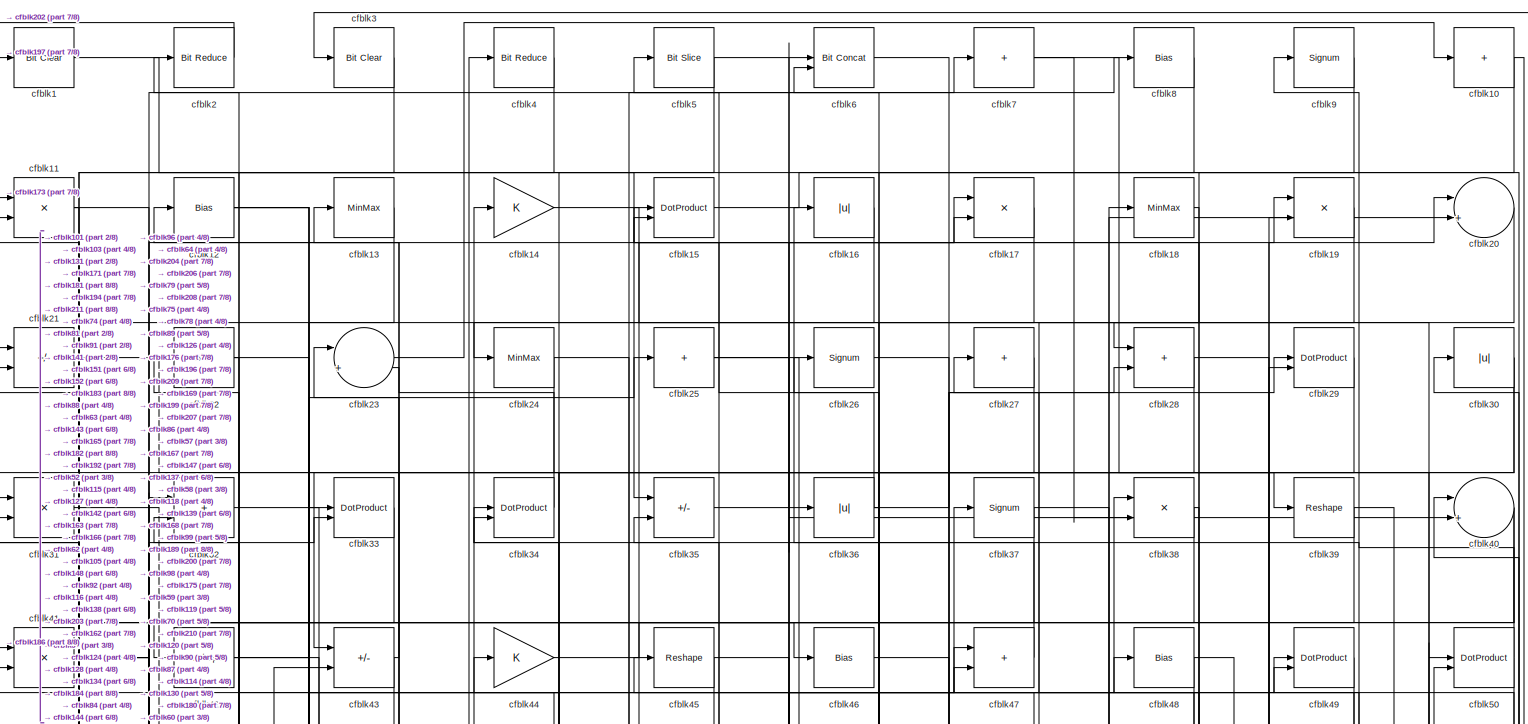
[diagram: root canvas - part 1/8, full width, top band]
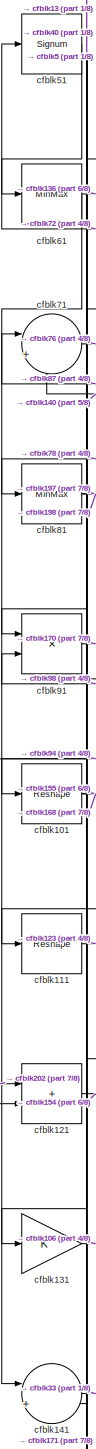
[diagram: root canvas - part 2/8, middle left region]
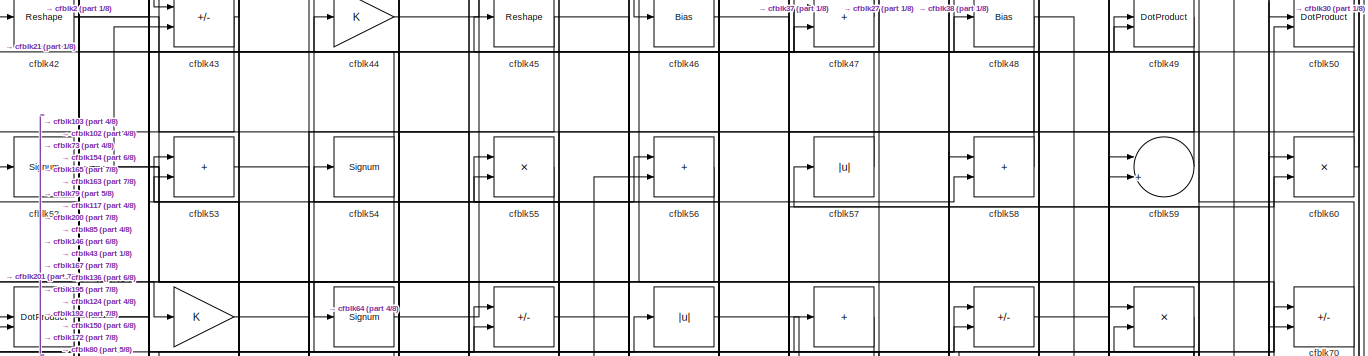
[diagram: root canvas - part 3/8, full width, top band]
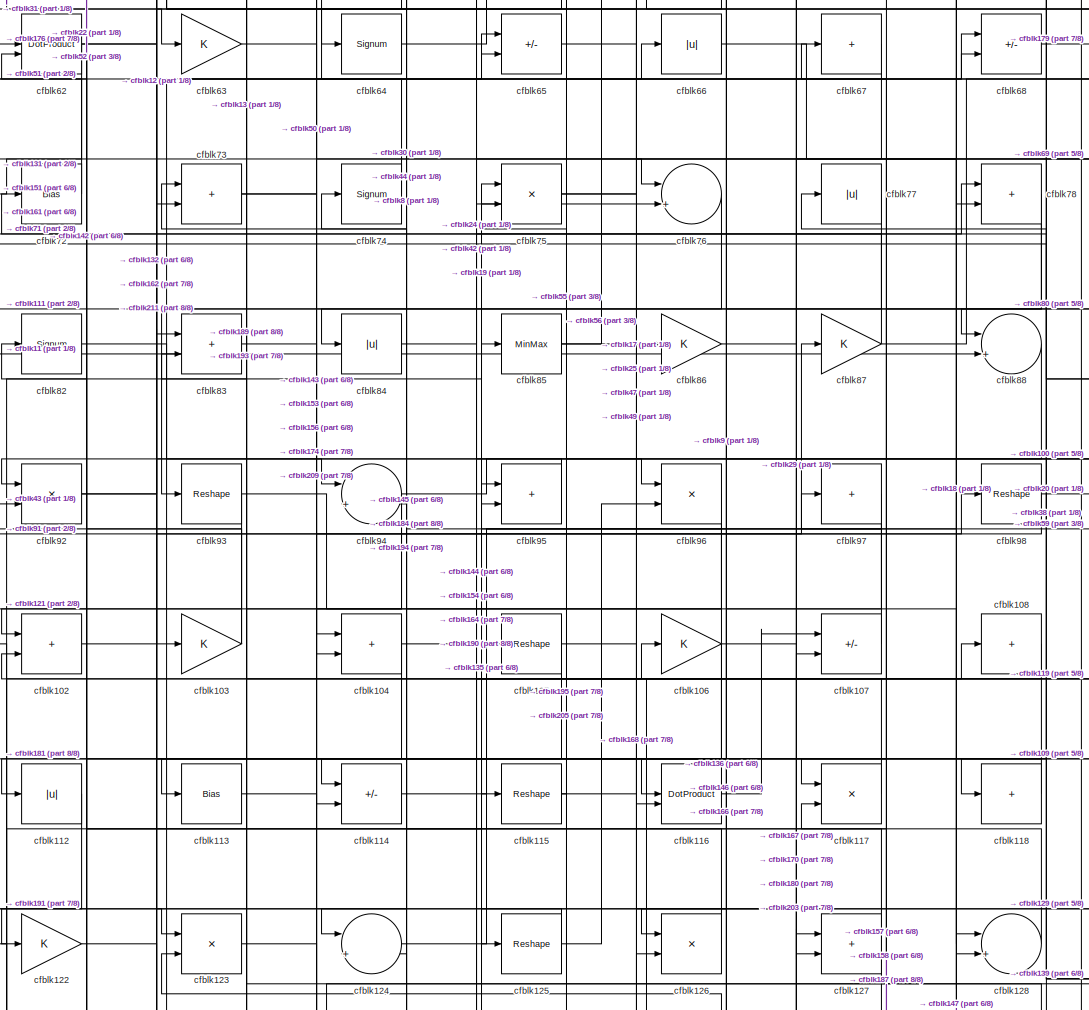
[diagram: root canvas - part 4/8, central region]
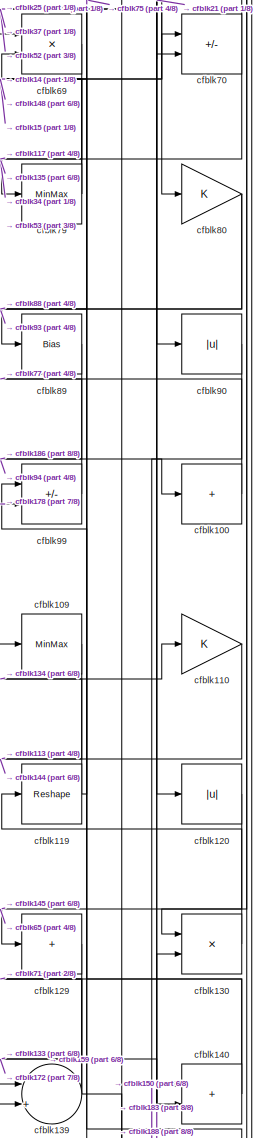
[diagram: root canvas - part 5/8, middle right region]
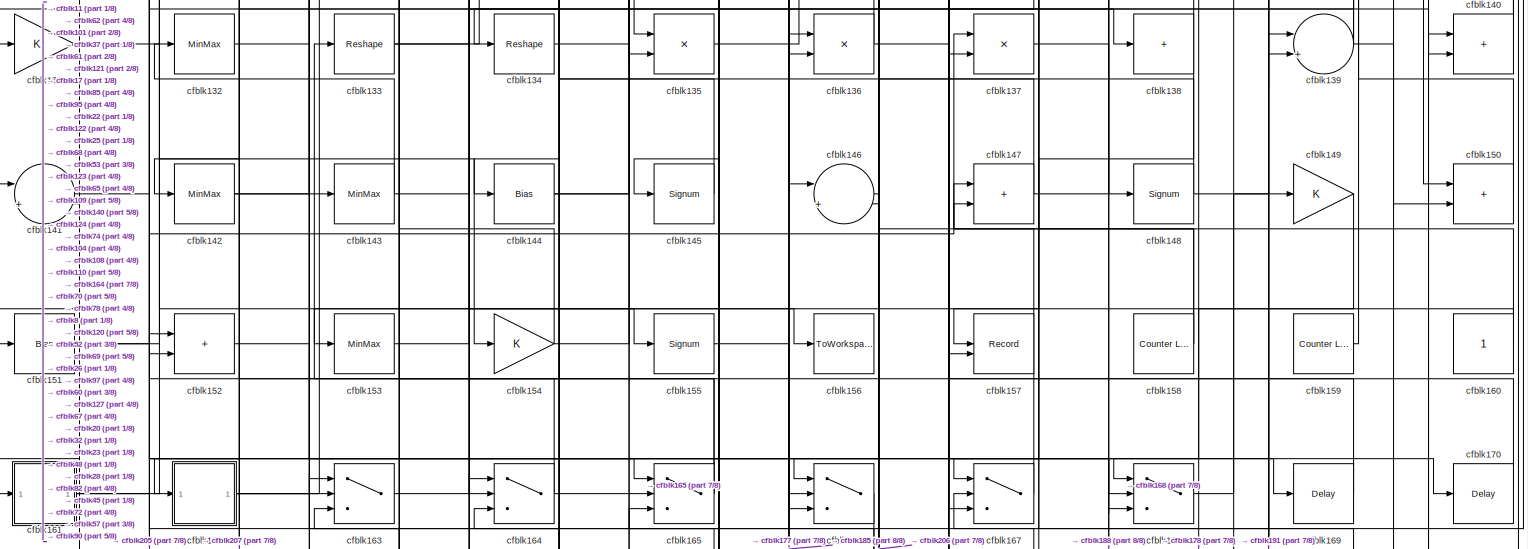
[diagram: root canvas - part 6/8, full width, bottom band]
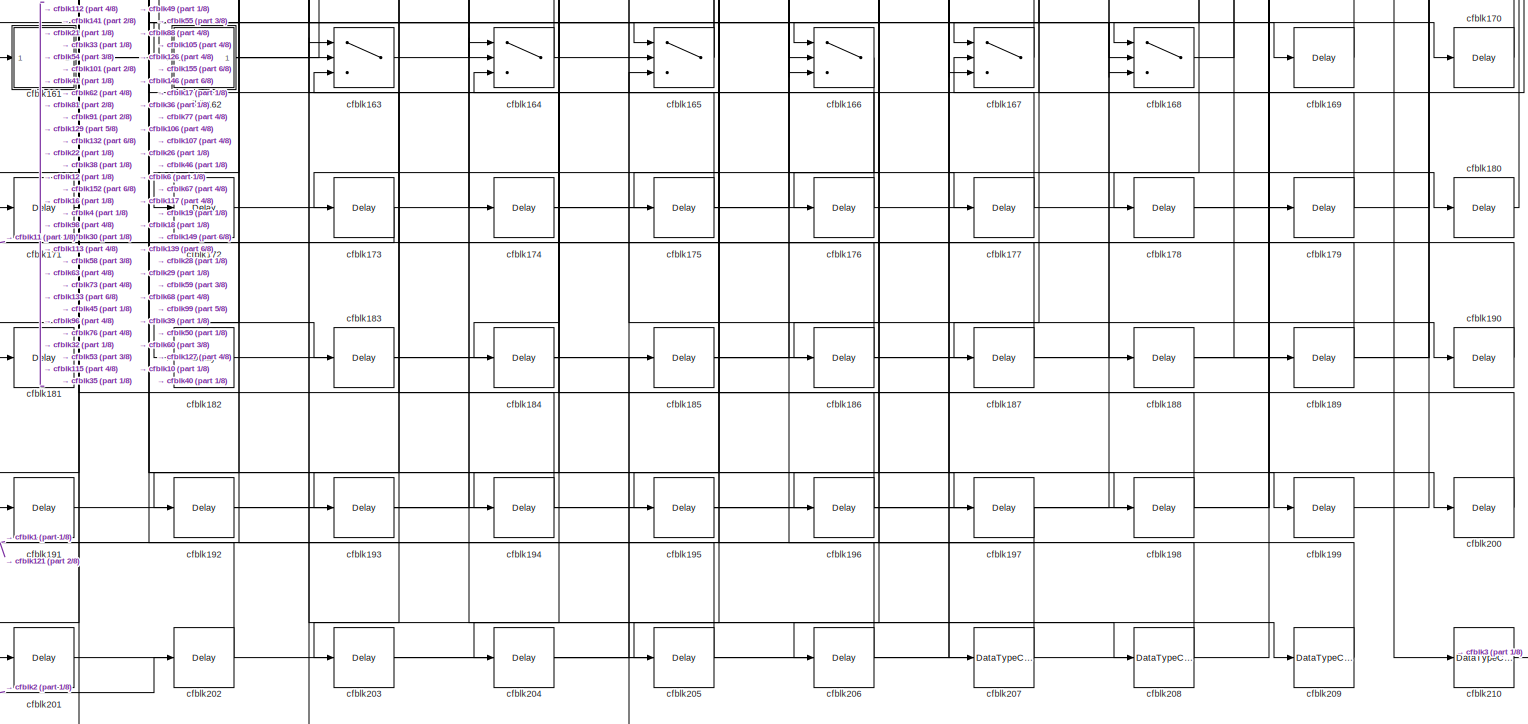
[diagram: root canvas - part 7/8, full width, bottom band]
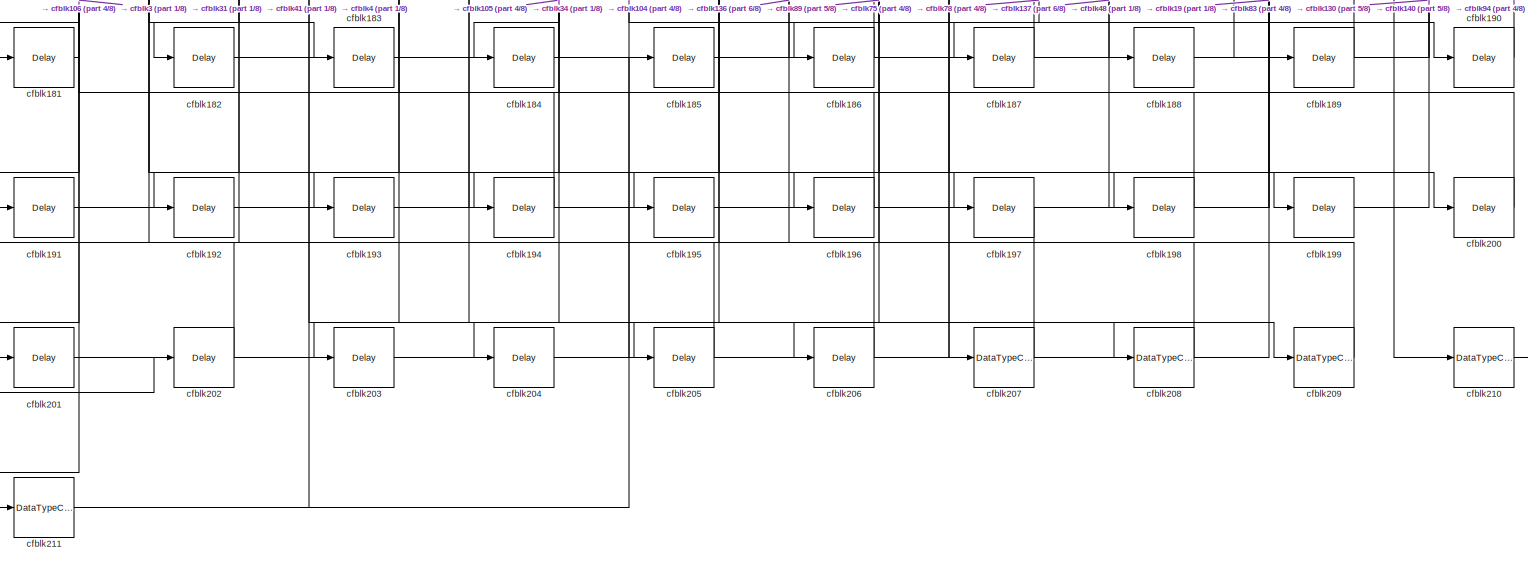
[diagram: root canvas - part 8/8, full width, bottom band]
MODEL slx_7d61e7e20dd7
KIND model
CONFIG AbsTol = auto
CONFIG EnableMultiTasking = off
CONFIG FixedStep = auto
CONFIG MaxStep = auto
CONFIG MinStep = auto
CONFIG RelTol = 1e-3
CONFIG SampleTimeConstraint = Unconstrained
CONFIG SolverName = VariableStepAuto
CONFIG StartTime = 0.0
CONFIG StopTime = 10.0
BLOCK [Reference] cfblk1  REF=simulink/Logic and Bit
Operations/Bit Clear
  LibrarySourceBlock = hdlsllib/Logic and Bit\nOperations/Bit Clear
  SourceBlock = simulink/Logic and Bit\nOperations/Bit Clear
  SourceType = Bit Clear
BLOCK [Sum] cfblk10
  IconShape = rectangular
  Inputs = +
BLOCK [Sum] cfblk100
  IconShape = rectangular
  Inputs = +
BLOCK [Reshape] cfblk101
BLOCK [Sum] cfblk102
  IconShape = rectangular
BLOCK [Gain] cfblk103
BLOCK [Sum] cfblk104
  IconShape = rectangular
BLOCK [Reshape] cfblk105
BLOCK [Gain] cfblk106
BLOCK [Sum] cfblk107
  IconShape = rectangular
  Inputs = +-
BLOCK [Sum] cfblk108
  IconShape = rectangular
  Inputs = +
BLOCK [MinMax] cfblk109
BLOCK [Product] cfblk11
  Inputs = */
  RndMeth = Zero
  SaturateOnIntegerOverflow = on
BLOCK [Gain] cfblk110
BLOCK [Reshape] cfblk111
BLOCK [Abs] cfblk112
  SaturateOnIntegerOverflow = off
BLOCK [Bias] cfblk113
  Bias = 0.0
  SaturateOnIntegerOverflow = off
BLOCK [Sum] cfblk114
  IconShape = rectangular
  Inputs = +-
BLOCK [Reshape] cfblk115
BLOCK [DotProduct] cfblk116
  OutDataTypeStr = Inherit: Inherit via internal rule
BLOCK [Product] cfblk117
  Inputs = */
  RndMeth = Zero
  SaturateOnIntegerOverflow = on
BLOCK [Sum] cfblk118
  IconShape = rectangular
  Inputs = +
BLOCK [Reshape] cfblk119
BLOCK [Bias] cfblk12
  Bias = 0.0
  SaturateOnIntegerOverflow = off
BLOCK [Abs] cfblk120
  SaturateOnIntegerOverflow = off
BLOCK [Sum] cfblk121
  IconShape = rectangular
BLOCK [Gain] cfblk122
BLOCK [Product] cfblk123
  Inputs = */
  RndMeth = Zero
  SaturateOnIntegerOverflow = on
BLOCK [Sum] cfblk124
  Inputs = |++
BLOCK [Reshape] cfblk125
BLOCK [Product] cfblk126
  Inputs = */
  RndMeth = Zero
  SaturateOnIntegerOverflow = on
BLOCK [Sum] cfblk127
  IconShape = rectangular
BLOCK [Sum] cfblk128
  Inputs = |++
BLOCK [Sum] cfblk129
  IconShape = rectangular
  Inputs = +
BLOCK [MinMax] cfblk13
BLOCK [Product] cfblk130
  Inputs = */
  RndMeth = Zero
  SaturateOnIntegerOverflow = on
BLOCK [Gain] cfblk131
BLOCK [MinMax] cfblk132
BLOCK [Reshape] cfblk133
BLOCK [Reshape] cfblk134
BLOCK [Product] cfblk135
  Inputs = */
  RndMeth = Zero
  SaturateOnIntegerOverflow = on
BLOCK [Product] cfblk136
  Inputs = */
  RndMeth = Zero
  SaturateOnIntegerOverflow = on
BLOCK [Product] cfblk137
  Inputs = */
  RndMeth = Zero
  SaturateOnIntegerOverflow = on
BLOCK [Sum] cfblk138
  IconShape = rectangular
  Inputs = +
BLOCK [Sum] cfblk139
  Inputs = |++
BLOCK [Gain] cfblk14
BLOCK [Sum] cfblk140
  IconShape = rectangular
BLOCK [Sum] cfblk141
  Inputs = |++
BLOCK [MinMax] cfblk142
BLOCK [MinMax] cfblk143
BLOCK [Bias] cfblk144
  Bias = 0.0
  SaturateOnIntegerOverflow = off
BLOCK [Signum] cfblk145
BLOCK [Sum] cfblk146
  Inputs = |++
BLOCK [Sum] cfblk147
  IconShape = rectangular
BLOCK [Signum] cfblk148
BLOCK [Gain] cfblk149
BLOCK [DotProduct] cfblk15
  OutDataTypeStr = Inherit: Inherit via internal rule
BLOCK [Sum] cfblk150
  IconShape = rectangular
BLOCK [Bias] cfblk151
  Bias = 0.0
  SaturateOnIntegerOverflow = off
BLOCK [Sum] cfblk152
  IconShape = rectangular
BLOCK [MinMax] cfblk153
BLOCK [Gain] cfblk154
BLOCK [Signum] cfblk155
BLOCK [ToWorkspace] cfblk156
  MaxDataPoints = inf
  SampleTime = -1
  SaveFormat = Timeseries
  VariableName = simout
BLOCK [Record] cfblk157
  CompatibilityTag = XY
  FileSettingsInternal = {"entries":[{"content":{"excelSettings":{"content":{},"type":"Streamout.ExcelSettings"}},"type":"Streamout.FileSettingStorage","uuid":""}],"packageUris":["http:\/\/schema.mathworks.com\/mf0\/streamout_blocks\/R2020a"],"version":"1.0"}
  Layout = [1 1]
  SignalsInternal = {"entries":[{"content":{"signals":[{"content":{"blockPath":[],"dimensions":[1],"domain":"","lineColor":"#a2142f","plots":[1],"port":1,"signalID":5500,"signalName":"XY Graph:1"},"type":"RecordBlkView.Signal","uuid":""},{"content":{"blockPath":[],"dimensions":[1],"domain":"","lineColor":"#139fff","plots":[1],"port":2,"signalID":5503,"signalName":"XY Graph:2"},"type":"RecordBlkView.Signal","uuid":""}...<+146ch>
  VisualizationBindings = {"xyplotplugin":{"info":[{"series":[{"bindingParametersList":[{"parameter":"X-Axis","signalID":5500,"signalName":"XY Graph:1"},{"parameter":"Y-Axis","signalID":5503,"signalName":"XY Graph:2"}],"seriesID":14815}],"subplotID":1}]}}
  st = -1
BLOCK [Reference] cfblk158  REF=hdlsllib/Sources/Counter
Limited
  SourceBlock = hdlsllib/Sources/Counter\nLimited
  SourceType = Counter Limited
BLOCK [Reference] cfblk159  REF=hdlsllib/Sources/Counter
Limited
  SourceBlock = hdlsllib/Sources/Counter\nLimited
  SourceType = Counter Limited
BLOCK [Abs] cfblk16
  SaturateOnIntegerOverflow = off
BLOCK [Constant] cfblk160
  SampleTime = -1
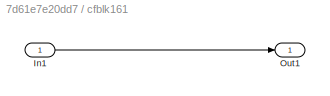
BLOCK [SubSystem] cfblk161
  LibrarySourceBlock = hdlsllib/Ports &\nSubsystems/Subsystem
BLOCK [Inport] cfblk161/In1
BLOCK [Outport] cfblk161/Out1
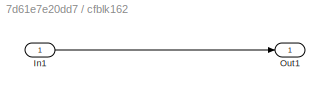
BLOCK [SubSystem] cfblk162
  LibrarySourceBlock = hdlsllib/Ports &\nSubsystems/Subsystem
BLOCK [Inport] cfblk162/In1
BLOCK [Outport] cfblk162/Out1
BLOCK [Switch] cfblk163
  InputSameDT = off
  SaturateOnIntegerOverflow = off
BLOCK [Switch] cfblk164
  InputSameDT = off
  SaturateOnIntegerOverflow = off
BLOCK [Switch] cfblk165
  InputSameDT = off
  SaturateOnIntegerOverflow = off
BLOCK [Switch] cfblk166
  InputSameDT = off
  SaturateOnIntegerOverflow = off
BLOCK [Switch] cfblk167
  InputSameDT = off
  SaturateOnIntegerOverflow = off
BLOCK [Switch] cfblk168
  InputSameDT = off
  SaturateOnIntegerOverflow = off
BLOCK [Delay] cfblk169
  InputPortMap = u0
  SampleTime = 1
BLOCK [Product] cfblk17
  Inputs = */
  RndMeth = Zero
  SaturateOnIntegerOverflow = on
BLOCK [Delay] cfblk170
  InputPortMap = u0
  SampleTime = 1
BLOCK [Delay] cfblk171
  InputPortMap = u0
  SampleTime = 1
BLOCK [Delay] cfblk172
  InputPortMap = u0
  SampleTime = 1
BLOCK [Delay] cfblk173
  InputPortMap = u0
  SampleTime = 1
BLOCK [Delay] cfblk174
  InputPortMap = u0
  SampleTime = 1
BLOCK [Delay] cfblk175
  InputPortMap = u0
  SampleTime = 1
BLOCK [Delay] cfblk176
  InputPortMap = u0
  SampleTime = 1
BLOCK [Delay] cfblk177
  InputPortMap = u0
  SampleTime = 1
BLOCK [Delay] cfblk178
  InputPortMap = u0
  SampleTime = 1
BLOCK [Delay] cfblk179
  InputPortMap = u0
  SampleTime = 1
BLOCK [MinMax] cfblk18
BLOCK [Delay] cfblk180
  InputPortMap = u0
  SampleTime = 1
BLOCK [Delay] cfblk181
  InputPortMap = u0
  SampleTime = 1
BLOCK [Delay] cfblk182
  InputPortMap = u0
  SampleTime = 1
BLOCK [Delay] cfblk183
  InputPortMap = u0
  SampleTime = 1
BLOCK [Delay] cfblk184
  InputPortMap = u0
  SampleTime = 1
BLOCK [Delay] cfblk185
  InputPortMap = u0
  SampleTime = 1
BLOCK [Delay] cfblk186
  InputPortMap = u0
  SampleTime = 1
BLOCK [Delay] cfblk187
  InputPortMap = u0
  SampleTime = 1
BLOCK [Delay] cfblk188
  InputPortMap = u0
  SampleTime = 1
BLOCK [Delay] cfblk189
  InputPortMap = u0
  SampleTime = 1
BLOCK [Product] cfblk19
  Inputs = */
  RndMeth = Zero
  SaturateOnIntegerOverflow = on
BLOCK [Delay] cfblk190
  InputPortMap = u0
  SampleTime = 1
BLOCK [Delay] cfblk191
  InputPortMap = u0
  SampleTime = 1
BLOCK [Delay] cfblk192
  InputPortMap = u0
  SampleTime = 1
BLOCK [Delay] cfblk193
  InputPortMap = u0
  SampleTime = 1
BLOCK [Delay] cfblk194
  InputPortMap = u0
  SampleTime = 1
BLOCK [Delay] cfblk195
  InputPortMap = u0
  SampleTime = 1
BLOCK [Delay] cfblk196
  InputPortMap = u0
  SampleTime = 1
BLOCK [Delay] cfblk197
  InputPortMap = u0
  SampleTime = 1
BLOCK [Delay] cfblk198
  InputPortMap = u0
  SampleTime = 1
BLOCK [Delay] cfblk199
  InputPortMap = u0
  SampleTime = 1
BLOCK [Reference] cfblk2  REF=hdlsllib/Logic and Bit
Operations/Bit Reduce
  SourceBlock = hdlsllib/Logic and Bit\nOperations/Bit Reduce
  SourceType = Bit Reduce
BLOCK [Sum] cfblk20
  Inputs = |++
BLOCK [Delay] cfblk200
  InputPortMap = u0
  SampleTime = 1
BLOCK [Delay] cfblk201
  InputPortMap = u0
  SampleTime = 1
BLOCK [Delay] cfblk202
  InputPortMap = u0
  SampleTime = 1
BLOCK [Delay] cfblk203
  InputPortMap = u0
  SampleTime = 1
BLOCK [Delay] cfblk204
  InputPortMap = u0
  SampleTime = 1
BLOCK [Delay] cfblk205
  InputPortMap = u0
  SampleTime = 1
BLOCK [Delay] cfblk206
  InputPortMap = u0
  SampleTime = 1
BLOCK [DataTypeConversion] cfblk207
  OutDataTypeStr = uint8
  RndMeth = Floor
  SaturateOnIntegerOverflow = off
BLOCK [DataTypeConversion] cfblk208
  OutDataTypeStr = uint8
  RndMeth = Floor
  SaturateOnIntegerOverflow = off
BLOCK [DataTypeConversion] cfblk209
  OutDataTypeStr = uint8
  RndMeth = Floor
  SaturateOnIntegerOverflow = off
BLOCK [Sum] cfblk21
  IconShape = rectangular
  Inputs = +-
BLOCK [DataTypeConversion] cfblk210
  OutDataTypeStr = boolean
  RndMeth = Floor
  SaturateOnIntegerOverflow = off
BLOCK [DataTypeConversion] cfblk211
  RndMeth = Floor
  SaturateOnIntegerOverflow = off
BLOCK [Bias] cfblk22
  Bias = 0.0
  SaturateOnIntegerOverflow = off
BLOCK [Sum] cfblk23
  Inputs = |++
BLOCK [MinMax] cfblk24
BLOCK [Sum] cfblk25
  IconShape = rectangular
  Inputs = +
BLOCK [Signum] cfblk26
BLOCK [Sum] cfblk27
  IconShape = rectangular
  Inputs = +
BLOCK [Sum] cfblk28
  IconShape = rectangular
BLOCK [DotProduct] cfblk29
  OutDataTypeStr = Inherit: Inherit via internal rule
BLOCK [Reference] cfblk3  REF=simulink/Logic and Bit
Operations/Bit Clear
  LibrarySourceBlock = hdlsllib/Logic and Bit\nOperations/Bit Clear
  SourceBlock = simulink/Logic and Bit\nOperations/Bit Clear
  SourceType = Bit Clear
BLOCK [Abs] cfblk30
  SaturateOnIntegerOverflow = off
BLOCK [Product] cfblk31
  Inputs = */
  RndMeth = Zero
  SaturateOnIntegerOverflow = on
BLOCK [Sum] cfblk32
  IconShape = rectangular
BLOCK [DotProduct] cfblk33
  OutDataTypeStr = Inherit: Inherit via internal rule
BLOCK [DotProduct] cfblk34
  OutDataTypeStr = Inherit: Inherit via internal rule
BLOCK [Sum] cfblk35
  IconShape = rectangular
  Inputs = +-
BLOCK [Abs] cfblk36
  SaturateOnIntegerOverflow = off
BLOCK [Signum] cfblk37
BLOCK [Product] cfblk38
  Inputs = */
  RndMeth = Zero
  SaturateOnIntegerOverflow = on
BLOCK [Reshape] cfblk39
BLOCK [Reference] cfblk4  REF=hdlsllib/Logic and Bit
Operations/Bit Reduce
  SourceBlock = hdlsllib/Logic and Bit\nOperations/Bit Reduce
  SourceType = Bit Reduce
BLOCK [Sum] cfblk40
  Inputs = |++
BLOCK [Product] cfblk41
  Inputs = */
  RndMeth = Zero
  SaturateOnIntegerOverflow = on
BLOCK [Reshape] cfblk42
BLOCK [Sum] cfblk43
  IconShape = rectangular
  Inputs = +-
BLOCK [Gain] cfblk44
BLOCK [Reshape] cfblk45
BLOCK [Bias] cfblk46
  Bias = 0.0
  SaturateOnIntegerOverflow = off
BLOCK [Sum] cfblk47
  IconShape = rectangular
BLOCK [Bias] cfblk48
  Bias = 0.0
  SaturateOnIntegerOverflow = off
BLOCK [DotProduct] cfblk49
  OutDataTypeStr = Inherit: Inherit via internal rule
BLOCK [Reference] cfblk5  REF=hdlsllib/Logic and Bit
Operations/Bit Slice
  SourceBlock = hdlsllib/Logic and Bit\nOperations/Bit Slice
  SourceType = Bit Slice
BLOCK [DotProduct] cfblk50
  OutDataTypeStr = Inherit: Inherit via internal rule
BLOCK [Signum] cfblk51
BLOCK [Signum] cfblk52
BLOCK [Sum] cfblk53
  IconShape = rectangular
BLOCK [Signum] cfblk54
BLOCK [Product] cfblk55
  Inputs = */
  RndMeth = Zero
  SaturateOnIntegerOverflow = on
BLOCK [Sum] cfblk56
  IconShape = rectangular
BLOCK [Abs] cfblk57
  SaturateOnIntegerOverflow = off
BLOCK [Sum] cfblk58
  IconShape = rectangular
BLOCK [Sum] cfblk59
  Inputs = |++
BLOCK [Reference] cfblk6  REF=hdlsllib/Logic and Bit
Operations/Bit Concat
  SourceBlock = hdlsllib/Logic and Bit\nOperations/Bit Concat
  SourceType = Bit Concat
BLOCK [Product] cfblk60
  Inputs = */
  RndMeth = Zero
  SaturateOnIntegerOverflow = on
BLOCK [MinMax] cfblk61
BLOCK [DotProduct] cfblk62
  OutDataTypeStr = Inherit: Inherit via internal rule
BLOCK [Gain] cfblk63
BLOCK [Signum] cfblk64
BLOCK [Sum] cfblk65
  IconShape = rectangular
  Inputs = +-
BLOCK [Abs] cfblk66
  SaturateOnIntegerOverflow = off
BLOCK [Sum] cfblk67
  IconShape = rectangular
  Inputs = +
BLOCK [Sum] cfblk68
  IconShape = rectangular
  Inputs = +-
BLOCK [Product] cfblk69
  Inputs = */
  RndMeth = Zero
  SaturateOnIntegerOverflow = on
BLOCK [Sum] cfblk7
  IconShape = rectangular
  Inputs = +
BLOCK [Sum] cfblk70
  IconShape = rectangular
  Inputs = +-
BLOCK [Sum] cfblk71
  Inputs = |++
BLOCK [Bias] cfblk72
  Bias = 0.0
  SaturateOnIntegerOverflow = off
BLOCK [Sum] cfblk73
  IconShape = rectangular
BLOCK [Signum] cfblk74
BLOCK [Product] cfblk75
  Inputs = */
  RndMeth = Zero
  SaturateOnIntegerOverflow = on
BLOCK [Sum] cfblk76
  Inputs = |++
BLOCK [Abs] cfblk77
  SaturateOnIntegerOverflow = off
BLOCK [Sum] cfblk78
  IconShape = rectangular
BLOCK [MinMax] cfblk79
BLOCK [Bias] cfblk8
  Bias = 0.0
  SaturateOnIntegerOverflow = off
BLOCK [Gain] cfblk80
BLOCK [MinMax] cfblk81
BLOCK [Signum] cfblk82
BLOCK [Sum] cfblk83
  IconShape = rectangular
BLOCK [Abs] cfblk84
  SaturateOnIntegerOverflow = off
BLOCK [MinMax] cfblk85
BLOCK [Gain] cfblk86
BLOCK [Gain] cfblk87
BLOCK [Sum] cfblk88
  Inputs = |++
BLOCK [Bias] cfblk89
  Bias = 0.0
  SaturateOnIntegerOverflow = off
BLOCK [Signum] cfblk9
BLOCK [Abs] cfblk90
  SaturateOnIntegerOverflow = off
BLOCK [Product] cfblk91
  Inputs = */
  RndMeth = Zero
  SaturateOnIntegerOverflow = on
BLOCK [Product] cfblk92
  Inputs = */
  RndMeth = Zero
  SaturateOnIntegerOverflow = on
BLOCK [Reshape] cfblk93
BLOCK [Sum] cfblk94
  Inputs = |++
BLOCK [Sum] cfblk95
  IconShape = rectangular
BLOCK [Product] cfblk96
  Inputs = */
  RndMeth = Zero
  SaturateOnIntegerOverflow = on
BLOCK [Sum] cfblk97
  IconShape = rectangular
  Inputs = +
BLOCK [Reshape] cfblk98
BLOCK [Sum] cfblk99
  IconShape = rectangular
  Inputs = +-
LINE cfblk100:1 -> cfblk77:1
NET cfblk101:1 -> cfblk155:1, cfblk168:3
LINE cfblk102:1 -> cfblk56:1
NET cfblk103:1 -> cfblk11:2, cfblk52:1
NET cfblk104:1 -> cfblk142:1, cfblk190:1
NET cfblk105:1 -> cfblk168:2, cfblk184:1
NET cfblk106:1 -> cfblk125:1, cfblk180:1, cfblk181:1, cfblk73:1
LINE cfblk107:1 -> cfblk87:1
NET cfblk108:1 -> cfblk102:2, cfblk135:1
LINE cfblk109:1 -> cfblk113:1
NET cfblk10:1 -> cfblk167:2, cfblk28:1
LINE cfblk110:1 -> cfblk144:1
LINE cfblk111:1 -> cfblk123:1
LINE cfblk112:1 -> cfblk191:1
LINE cfblk113:1 -> cfblk174:1
LINE cfblk114:1 -> cfblk18:1
NET cfblk115:1 -> cfblk17:2, cfblk195:1
NET cfblk116:1 -> cfblk107:1, cfblk13:1
LINE cfblk117:1 -> cfblk55:1
LINE cfblk118:1 -> cfblk112:1
NET cfblk119:1 -> cfblk49:2, cfblk75:1
NET cfblk11:1 -> cfblk151:1, cfblk88:2
LINE cfblk120:1 -> cfblk145:1
LINE cfblk121:1 -> cfblk154:1
LINE cfblk122:1 -> cfblk143:1
LINE cfblk123:1 -> cfblk156:1
LINE cfblk124:1 -> cfblk59:1
NET cfblk125:1 -> cfblk122:1, cfblk96:2
LINE cfblk126:1 -> cfblk82:1
NET cfblk127:1 -> cfblk157:2, cfblk62:2
LINE cfblk128:1 -> cfblk44:1
LINE cfblk129:1 -> cfblk172:1
NET cfblk12:1 -> cfblk116:2, cfblk127:2, cfblk166:3
LINE cfblk130:1 -> cfblk119:1
LINE cfblk131:1 -> cfblk106:1
LINE cfblk132:1 -> cfblk68:1
NET cfblk133:1 -> cfblk109:1, cfblk140:2
LINE cfblk134:1 -> cfblk110:1
LINE cfblk135:1 -> cfblk69:1
NET cfblk136:1 -> cfblk123:2, cfblk60:2
LINE cfblk137:1 -> cfblk188:1
NET cfblk138:1 -> cfblk157:1, cfblk23:1
NET cfblk139:1 -> cfblk150:2, cfblk45:1, cfblk72:1
LINE cfblk13:1 -> cfblk91:1
NET cfblk140:1 -> cfblk71:2, cfblk99:1
LINE cfblk141:1 -> cfblk33:2
NET cfblk142:1 -> cfblk25:1, cfblk48:1
NET cfblk143:1 -> cfblk22:1, cfblk65:2
NET cfblk144:1 -> cfblk78:1, cfblk8:1
LINE cfblk145:1 -> cfblk74:1
LINE cfblk146:1 -> cfblk206:1
NET cfblk147:1 -> cfblk124:2, cfblk20:2
NET cfblk148:1 -> cfblk26:1, cfblk70:1
LINE cfblk149:1 -> cfblk178:1
LINE cfblk14:1 -> cfblk90:1
LINE cfblk150:1 -> cfblk57:1
NET cfblk151:1 -> cfblk17:1, cfblk85:1
LINE cfblk152:1 -> cfblk165:1
LINE cfblk153:1 -> cfblk97:1
NET cfblk154:1 -> cfblk108:1, cfblk53:2
LINE cfblk155:1 -> cfblk177:1
NET cfblk158:1 -> cfblk137:1, cfblk67:1
LINE cfblk159:1 -> cfblk69:2
LINE cfblk15:1 -> cfblk130:1
NET cfblk160:1 -> cfblk147:1, cfblk153:1
LINE cfblk161/In1:1 -> cfblk161/Out1:1
NET cfblk161:1 -> cfblk147:2, cfblk95:1
LINE cfblk162/In1:1 -> cfblk162/Out1:1
NET cfblk162:1 -> cfblk208:1, cfblk4:1, cfblk98:1
LINE cfblk163:1 -> cfblk58:2
NET cfblk164:1 -> cfblk133:1, cfblk76:2
NET cfblk165:1 -> cfblk32:2, cfblk53:1
LINE cfblk166:1 -> cfblk173:1
LINE cfblk167:1 -> cfblk54:1
LINE cfblk168:1 -> cfblk149:1
LINE cfblk169:1 -> cfblk32:1
LINE cfblk16:1 -> cfblk163:2
LINE cfblk170:1 -> cfblk127:1
LINE cfblk171:1 -> cfblk141:2
LINE cfblk172:1 -> cfblk60:1
LINE cfblk173:1 -> cfblk11:1
LINE cfblk174:1 -> cfblk126:2
LINE cfblk175:1 -> cfblk163:1
LINE cfblk176:1 -> cfblk62:1
LINE cfblk177:1 -> cfblk165:2
LINE cfblk178:1 -> cfblk99:2
LINE cfblk179:1 -> cfblk117:2
LINE cfblk17:1 -> cfblk196:1
LINE cfblk180:1 -> cfblk40:1
LINE cfblk181:1 -> cfblk31:2
LINE cfblk182:1 -> cfblk19:2
LINE cfblk183:1 -> cfblk130:2
LINE cfblk184:1 -> cfblk34:2
LINE cfblk185:1 -> cfblk136:1
LINE cfblk186:1 -> cfblk41:1
LINE cfblk187:1 -> cfblk75:2
LINE cfblk188:1 -> cfblk140:1
LINE cfblk189:1 -> cfblk83:2
LINE cfblk18:1 -> cfblk168:1
LINE cfblk190:1 -> cfblk94:2
LINE cfblk191:1 -> cfblk139:1
LINE cfblk192:1 -> cfblk59:2
LINE cfblk193:1 -> cfblk164:1
LINE cfblk194:1 -> cfblk21:2
LINE cfblk195:1 -> cfblk58:1
LINE cfblk196:1 -> cfblk164:3
LINE cfblk197:1 -> cfblk1:1
LINE cfblk198:1 -> cfblk163:3
LINE cfblk199:1 -> cfblk50:1
LINE cfblk19:1 -> cfblk167:1
LINE cfblk1:1 -> cfblk35:1
LINE cfblk200:1 -> cfblk55:2
LINE cfblk201:1 -> cfblk165:3
LINE cfblk202:1 -> cfblk121:1
LINE cfblk203:1 -> cfblk107:2
LINE cfblk204:1 -> cfblk29:2
LINE cfblk205:1 -> cfblk152:1
LINE cfblk206:1 -> cfblk35:2
LINE cfblk207:1 -> cfblk132:1
LINE cfblk208:1 -> cfblk6:1
LINE cfblk209:1 -> cfblk6:2
LINE cfblk20:1 -> cfblk24:1
LINE cfblk210:1 -> cfblk3:1
NET cfblk211:1 -> cfblk185:1, cfblk83:1
LINE cfblk21:1 -> cfblk120:1
NET cfblk22:1 -> cfblk115:1, cfblk162:1
LINE cfblk23:1 -> cfblk10:1
NET cfblk24:1 -> cfblk41:2, cfblk96:1
NET cfblk25:1 -> cfblk78:2, cfblk89:1
LINE cfblk26:1 -> cfblk169:1
LINE cfblk27:1 -> cfblk43:1
NET cfblk28:1 -> cfblk134:1, cfblk200:1
LINE cfblk29:1 -> cfblk116:1
LINE cfblk2:1 -> cfblk202:1
NET cfblk30:1 -> cfblk124:1, cfblk203:1
LINE cfblk31:1 -> cfblk63:1
LINE cfblk32:1 -> cfblk148:1
LINE cfblk33:1 -> cfblk171:1
LINE cfblk34:1 -> cfblk12:1
LINE cfblk35:1 -> cfblk16:1
NET cfblk36:1 -> cfblk176:1, cfblk28:2, cfblk5:1
NET cfblk37:1 -> cfblk152:2, cfblk70:2
NET cfblk38:1 -> cfblk118:1, cfblk192:1
NET cfblk39:1 -> cfblk210:1, cfblk42:1
LINE cfblk3:1 -> cfblk211:1
NET cfblk40:1 -> cfblk131:1, cfblk81:1
NET cfblk41:1 -> cfblk166:2, cfblk183:1, cfblk7:1
NET cfblk42:1 -> cfblk105:1, cfblk33:1
NET cfblk43:1 -> cfblk23:2, cfblk92:2
LINE cfblk44:1 -> cfblk46:1
NET cfblk45:1 -> cfblk138:1, cfblk204:1
LINE cfblk46:1 -> cfblk199:1
LINE cfblk47:1 -> cfblk36:1
NET cfblk48:1 -> cfblk137:2, cfblk189:1
LINE cfblk49:1 -> cfblk175:1
LINE cfblk4:1 -> cfblk182:1
NET cfblk50:1 -> cfblk114:2, cfblk9:1
LINE cfblk51:1 -> cfblk61:1
NET cfblk52:1 -> cfblk146:1, cfblk43:2, cfblk80:1
LINE cfblk53:1 -> cfblk79:1
NET cfblk54:1 -> cfblk201:1, cfblk21:1
LINE cfblk55:1 -> cfblk64:1
LINE cfblk56:1 -> cfblk73:2
LINE cfblk57:1 -> cfblk2:1
LINE cfblk58:1 -> cfblk37:1
LINE cfblk59:1 -> cfblk27:1
NET cfblk5:1 -> cfblk101:1, cfblk40:2
NET cfblk60:1 -> cfblk30:1, cfblk38:1
NET cfblk61:1 -> cfblk136:2, cfblk141:1
NET cfblk62:1 -> cfblk103:1, cfblk161:1, cfblk47:2
LINE cfblk63:1 -> cfblk164:2
LINE cfblk64:1 -> cfblk19:1
LINE cfblk65:1 -> cfblk129:1
LINE cfblk66:1 -> cfblk128:1
LINE cfblk67:1 -> cfblk167:3
LINE cfblk68:1 -> cfblk179:1
LINE cfblk69:1 -> cfblk117:1
LINE cfblk6:1 -> cfblk207:1
NET cfblk70:1 -> cfblk135:2, cfblk34:1
LINE cfblk71:1 -> cfblk76:1
LINE cfblk72:1 -> cfblk51:1
NET cfblk73:1 -> cfblk209:1, cfblk68:2
LINE cfblk74:1 -> cfblk31:1
NET cfblk75:1 -> cfblk47:1, cfblk49:1
LINE cfblk76:1 -> cfblk114:1
LINE cfblk77:1 -> cfblk166:1
NET cfblk78:1 -> cfblk111:1, cfblk187:1
NET cfblk79:1 -> cfblk14:1, cfblk15:2
NET cfblk7:1 -> cfblk38:2, cfblk39:1
NET cfblk80:1 -> cfblk88:1, cfblk93:1
NET cfblk81:1 -> cfblk197:1, cfblk198:1
LINE cfblk82:1 -> cfblk139:2
LINE cfblk83:1 -> cfblk104:1
LINE cfblk84:1 -> cfblk66:1
NET cfblk85:1 -> cfblk56:2, cfblk86:1
LINE cfblk86:1 -> cfblk29:1
NET cfblk87:1 -> cfblk50:2, cfblk71:1
LINE cfblk88:1 -> cfblk205:1
LINE cfblk89:1 -> cfblk186:1
LINE cfblk8:1 -> cfblk84:1
LINE cfblk90:1 -> cfblk150:1
LINE cfblk91:1 -> cfblk170:1
NET cfblk92:1 -> cfblk65:1, cfblk94:1
NET cfblk93:1 -> cfblk102:1, cfblk128:2
NET cfblk94:1 -> cfblk100:1, cfblk104:2, cfblk121:2
LINE cfblk95:1 -> cfblk92:1
NET cfblk96:1 -> cfblk193:1, cfblk194:1
NET cfblk97:1 -> cfblk146:2, cfblk95:2
NET cfblk98:1 -> cfblk20:1, cfblk91:2
LINE cfblk99:1 -> cfblk15:1
LINE cfblk9:1 -> cfblk126:1
note: NET lines group one-source signal fan-out (src -> all destinations, sorted); 1:1 wires keep LINE
